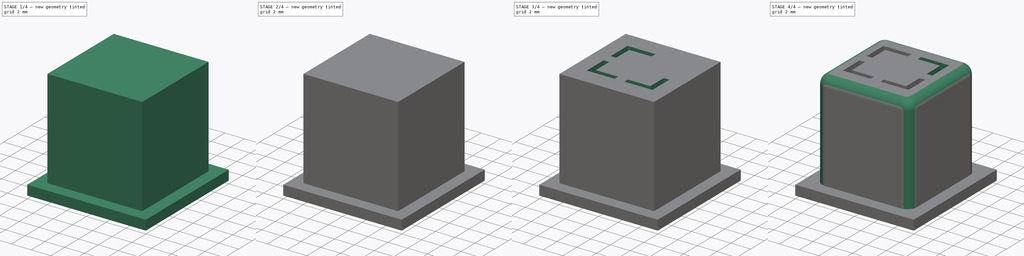
[diagram: build sequence overview — one tinted view per stage of 4, left to right]
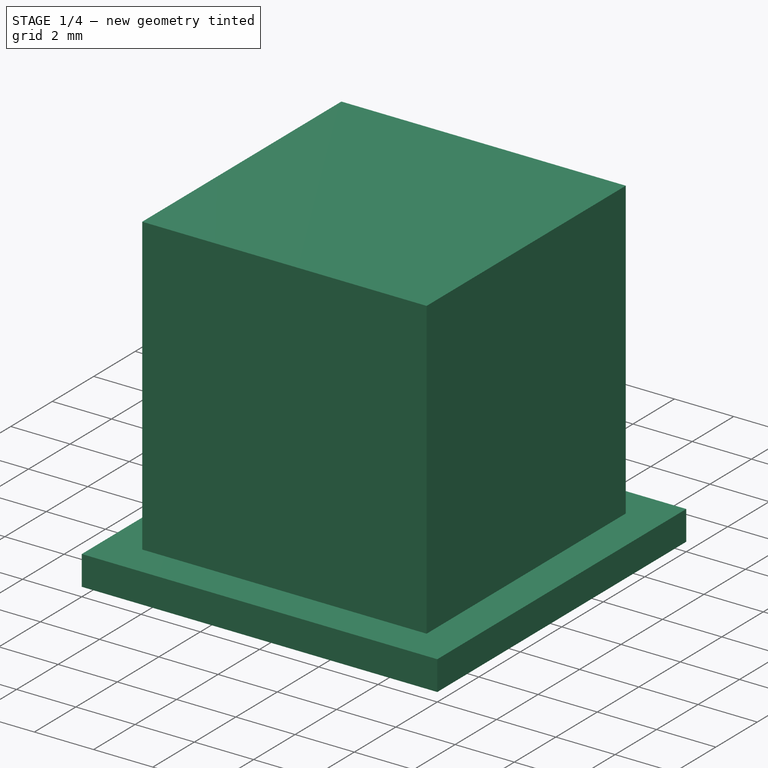
[diagram: stage 1 of 4 — iso view after this stage's code; geometry added in this stage tinted green]
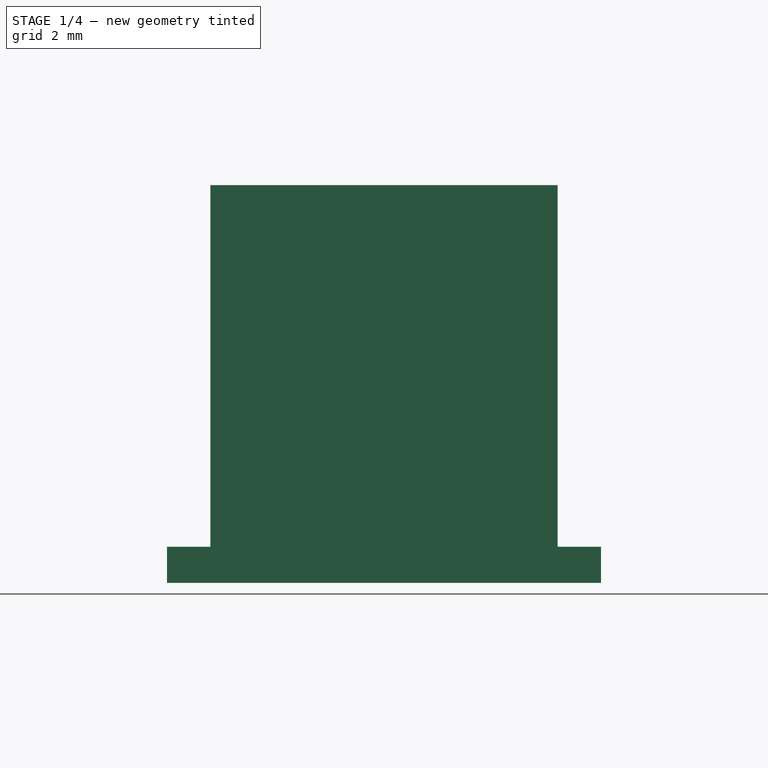
[diagram: stage 1 of 4 — front view after this stage's code; geometry added in this stage tinted green]
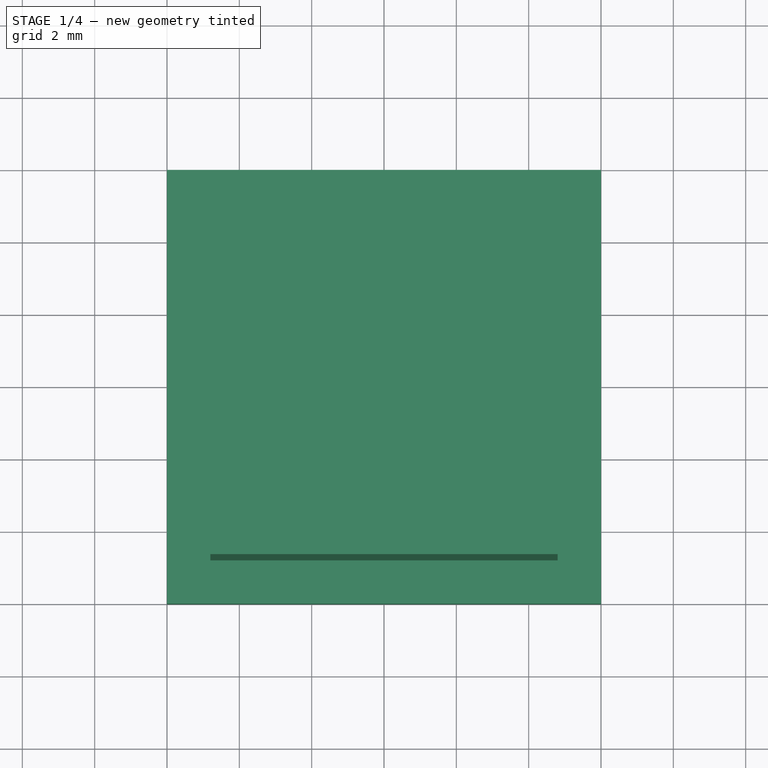
[diagram: stage 1 of 4 — top view after this stage's code; geometry added in this stage tinted green]
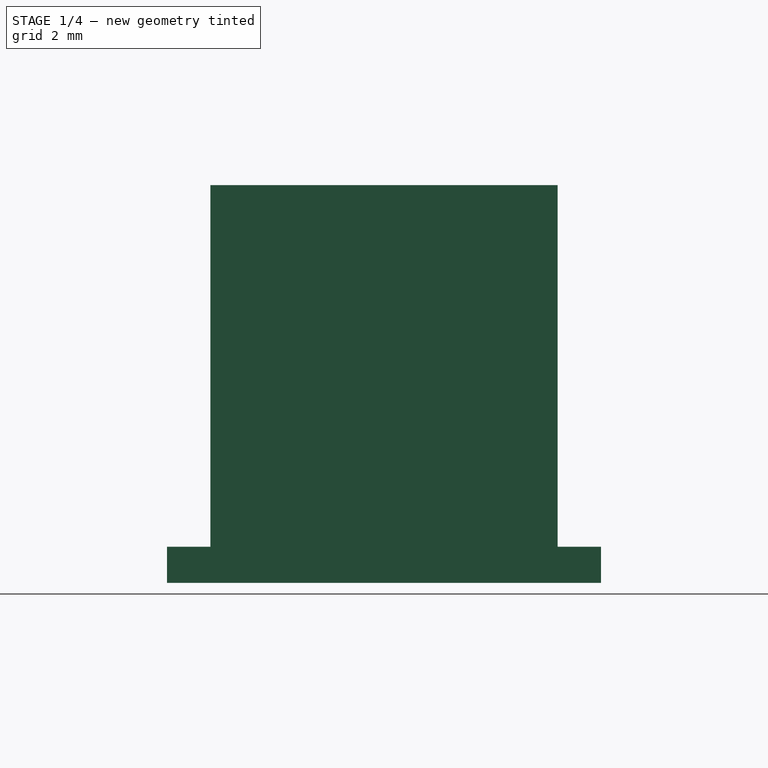
[diagram: stage 1 of 4 — right view after this stage's code; geometry added in this stage tinted green]
FCSTD DOCUMENT  (FreeCAD 0.21R33771 (Git))
Label: bezel-3-button-iteration-1
License: All rights reserved
LicenseURL: http://en.wikipedia.org/wiki/All_rights_reserved
objects: Sketcher::SketchObject×9, PartDesign::Pocket×6, PartDesign::Pad×2, PartDesign::Fillet×1, PartDesign::Body×1
note: 28 computed .brp shape members not serialized (recipe doc carries the construction recipe); baked Part::Feature solids carry a one-line shape summary decoded from their .brp

FEATURE [Sketcher::SketchObject] Sketch
  FullyConstrained = true
  MapMode = 5
  Support = -> [XY_Plane]
  sketch-geometry (4):
    g0: LineSegment StartX=-4.8 StartY=4.8 StartZ=0 EndX=4.8 EndY=4.8 EndZ=0
    g1: LineSegment StartX=4.8 StartY=4.8 StartZ=0 EndX=4.8 EndY=-4.8 EndZ=0
    g2: LineSegment StartX=4.8 StartY=-4.8 StartZ=0 EndX=-4.8 EndY=-4.8 EndZ=0
    g3: LineSegment StartX=-4.8 StartY=-4.8 StartZ=0 EndX=-4.8 EndY=4.8 EndZ=0
  constraints (11):
    c: Coincident(g0,g1)
    c: Coincident(g1,g2)
    c: Coincident(g2,g3)
    c: Coincident(g3,g0)
    c: Horizontal(g0)
    c: Horizontal(g2)
    c: Vertical(g1)
    c: Vertical(g3)
    c: Symmetric(g1,g0,g-1)
    c: Distance(g-1,g1) = 4.8
    c: Distance(g-1,g2) = 4.8
FEATURE [Sketcher::SketchObject] Sketch001
  FullyConstrained = true
  MapMode = 5
  Placement = pos=(0,0,10) rot=(0,0,1;0rad)
  sketch-geometry (30):
    g0: LineSegment StartX=-3.32 StartY=0.5 StartZ=0 EndX=-2.76 EndY=0.5 EndZ=0
    g1: LineSegment StartX=-2.76 StartY=0.5 StartZ=0 EndX=-2.76 EndY=2.45 EndZ=0
    g2: LineSegment StartX=-0.5 StartY=2.95 StartZ=0 EndX=-3.32 EndY=2.95 EndZ=0
    g3: LineSegment StartX=-0.5 StartY=2.45 StartZ=0 EndX=-2.76 EndY=2.45 EndZ=0
    g4: LineSegment StartX=-0.5 StartY=2.95 StartZ=0 EndX=-0.5 EndY=2.45 EndZ=0
    g5: LineSegment StartX=-3.32 StartY=2.95 StartZ=0 EndX=-3.32 EndY=0.5 EndZ=0
    g6: LineSegment StartX=-0.5 StartY=2.95 StartZ=0 EndX=0.5 EndY=2.95 EndZ=0
    g7: LineSegment StartX=0.5 StartY=2.95 StartZ=0 EndX=3.32 EndY=2.95 EndZ=0
    g8: LineSegment StartX=3.32 StartY=2.95 StartZ=0 EndX=3.32 EndY=0.5 EndZ=0
    g9: LineSegment StartX=3.32 StartY=0.5 StartZ=0 EndX=3.32 EndY=-0.5 EndZ=0
    g10: LineSegment StartX=3.32 StartY=-0.5 StartZ=0 EndX=3.32 EndY=-2.95 EndZ=0
    g11: LineSegment StartX=3.32 StartY=-2.95 StartZ=0 EndX=0.5 EndY=-2.95 EndZ=0
    g12: LineSegment StartX=0.5 StartY=-2.95 StartZ=0 EndX=-0.5 EndY=-2.95 EndZ=0
    g13: LineSegment StartX=-0.5 StartY=-2.95 StartZ=0 EndX=-3.32 EndY=-2.95 EndZ=0
    g14: LineSegment StartX=-3.32 StartY=-2.95 StartZ=0 EndX=-3.32 EndY=-0.5 EndZ=0
    g15: LineSegment StartX=-0.5 StartY=2.45 StartZ=0 EndX=0.5 EndY=2.45 EndZ=0
    g16: LineSegment StartX=0.5 StartY=2.45 StartZ=0 EndX=2.76 EndY=2.45 EndZ=0
    g17: LineSegment StartX=2.76 StartY=2.45 StartZ=0 EndX=2.76 EndY=0.5 EndZ=0
    g18: LineSegment StartX=2.76 StartY=0.5 StartZ=0 EndX=3.32 EndY=0.5 EndZ=0
    g19: LineSegment StartX=0.5 StartY=2.45 StartZ=0 EndX=0.5 EndY=2.95 EndZ=0
    g20: LineSegment StartX=2.76 StartY=0.5 StartZ=0 EndX=2.76 EndY=-0.5 EndZ=0
    g21: LineSegment StartX=2.76 StartY=-0.5 StartZ=0 EndX=2.76 EndY=-2.45 EndZ=0
    g22: LineSegment StartX=2.76 StartY=-2.45 StartZ=0 EndX=0.5 EndY=-2.45 EndZ=0
    g23: LineSegment StartX=0.5 StartY=-2.45 StartZ=0 EndX=0.5 EndY=-2.95 EndZ=0
    g24: LineSegment StartX=0.5 StartY=-2.45 StartZ=0 EndX=-0.5 EndY=-2.45 EndZ=0
    g25: LineSegment StartX=-0.5 StartY=-2.45 StartZ=0 EndX=-2.76 EndY=-2.45 EndZ=0
    g26: LineSegment StartX=-2.76 StartY=-2.45 StartZ=0 EndX=-2.76 EndY=-0.5 EndZ=0
    g27: LineSegment StartX=-2.74 StartY=-0.5 StartZ=0 EndX=-3.32 EndY=-0.5 EndZ=0
    g28: LineSegment StartX=-0.5 StartY=-2.45 StartZ=0 EndX=-0.5 EndY=-2.95 EndZ=0
    g29: LineSegment StartX=2.76 StartY=-0.5 StartZ=0 EndX=3.32 EndY=-0.5 EndZ=0
  constraints (85):
    c: DistanceX(g-2,g1) = -2.76
    c: Coincident(g0,g1)
    c: Horizontal(g0)
    c: Vertical(g1)
    c: Horizontal(g2)
    c: DistanceY(g-1,g0) = 0.5
    c: DistanceY(g-1,g1) = 2.45
    c: DistanceX(g2,g2) = 2.82
    c: Coincident(g3,g1)
    c: Horizontal(g3)
    c: Coincident(g2,g4)
    c: Coincident(g4,g3)
    c: Vertical(g4)
    c: Coincident(g2,g5)
    c: Coincident(g5,g0)
    c: Vertical(g5)
    c: DistanceX(g3,g3) = 2.26
    c: DistanceY(g5,g5) = 2.45
    c: Coincident(g6,g2)
    c: Horizontal(g6)
    c: DistanceX(g6,g6) = 1
    c: Coincident(g7,g6)
    c: Horizontal(g7)
    c: DistanceX(g7,g7) = 2.82
    c: Coincident(g8,g7)
    c: Vertical(g8)
    c: DistanceY(g8,g8) = 2.45
    c: DistanceY(g14,g0) = 1
    c: Coincident(g9,g8)
    c: Vertical(g9)
    c: DistanceY(g9,g9) = 1
    c: Coincident(g10,g9)
    c: Vertical(g10)
    c: DistanceY(g10,g10) = 2.45
    c: Coincident(g11,g10)
    c: Horizontal(g11)
    c: DistanceX(g11,g11) = 2.82
    c: Coincident(g12,g11)
    c: Horizontal(g12)
    c: DistanceX(g12,g12) = 1
    c: Coincident(g13,g12)
    c: Horizontal(g13)
    c: DistanceX(g13,g13) = 2.82
    c: Coincident(g14,g13)
    c: Coincident(g15,g3)
    c: Horizontal(g15)
    c: DistanceX(g15,g15) = 1
    c: Coincident(g16,g15)
    c: Horizontal(g16)
    c: DistanceX(g16,g16) = 2.26
    c: Coincident(g17,g16)
    c: Vertical(g17)
    c: DistanceY(g17,g17) = 1.95
    c: Coincident(g18,g17)
    c: Coincident(g18,g8)
    c: Coincident(g19,g16)
    c: Coincident(g19,g7)
    c: Coincident(g20,g17)
    c: Vertical(g20)
    c: DistanceY(g20,g20) = 1
    c: Coincident(g21,g20)
    c: Vertical(g21)
    c: DistanceY(g21,g21) = 1.95
    c: Coincident(g22,g21)
    c: Horizontal(g22)
    c: DistanceX(g22,g22) = 2.26
    c: Coincident(g23,g22)
    c: Coincident(g23,g11)
    c: Coincident(g24,g22)
    c: Horizontal(g24)
    c: DistanceX(g24,g24) = 1
    c: Coincident(g25,g24)
    c: Horizontal(g25)
    c: DistanceX(g25,g25) = 2.26
    c: Coincident(g26,g25)
    c: Vertical(g26)
    c: DistanceY(g26,g26) = 1.95
    c: Coincident(g27,g14)
    c: Horizontal(g27)
    c: DistanceX(g27,g27) = 0.58
    c: Coincident(g28,g25)
    c: Coincident(g28,g13)
    c: Coincident(g29,g21)
    c: Coincident(g29,g10)
    c: DistanceX(g-2,g14) = -3.32
FEATURE [Sketcher::SketchObject] Sketch002
  FullyConstrained = true
  MapMode = 5
  Placement = pos=(0,0,0) rot=(1,0,0;3.14159rad)
  sketch-geometry (4):
    g0: LineSegment StartX=-6 StartY=6 StartZ=0 EndX=6 EndY=6 EndZ=0
    g1: LineSegment StartX=6 StartY=6 StartZ=0 EndX=6 EndY=-6 EndZ=0
    g2: LineSegment StartX=6 StartY=-6 StartZ=0 EndX=-6 EndY=-6 EndZ=0
    g3: LineSegment StartX=-6 StartY=-6 StartZ=0 EndX=-6 EndY=6 EndZ=0
  constraints (11):
    c: Coincident(g0,g1)
    c: Coincident(g1,g2)
    c: Coincident(g2,g3)
    c: Coincident(g3,g0)
    c: Horizontal(g0)
    c: Horizontal(g2)
    c: Vertical(g1)
    c: Vertical(g3)
    c: Symmetric(g1,g0,g-1)
    c: DistanceY(g1,g1) = 12
    c: DistanceX(g2,g2) = 12
FEATURE [Sketcher::SketchObject] Sketch003
  FullyConstrained = true
  MapMode = 5
  Placement = pos=(0,0,-2) rot=(1,0,0;3.14159rad)
  sketch-geometry (4):
    g0: LineSegment StartX=-4 StartY=3 StartZ=0 EndX=-1 EndY=3 EndZ=0
    g1: LineSegment StartX=-1 StartY=3 StartZ=0 EndX=-1 EndY=-3 EndZ=0
    g2: LineSegment StartX=-1 StartY=-3 StartZ=0 EndX=-4 EndY=-3 EndZ=0
    g3: LineSegment StartX=-4 StartY=-3 StartZ=0 EndX=-4 EndY=3 EndZ=0
  constraints (11):
    c: Coincident(g0,g1)
    c: Coincident(g1,g2)
    c: Coincident(g2,g3)
    c: Coincident(g3,g0)
    c: Horizontal(g0)
    c: Horizontal(g2)
    c: Vertical(g3)
    c: Symmetric(g0,g1,g-1)
    c: DistanceY(g1,g1) = 6
    c: DistanceX(g2,g2) = 3
    c: DistanceX(g-2,g1) = -1
FEATURE [Sketcher::SketchObject] Sketch004
  FullyConstrained = true
  MapMode = 5
  Placement = pos=(0,0,-2) rot=(1,0,0;3.14159rad)
  sketch-geometry (4):
    g0: LineSegment StartX=1 StartY=3 StartZ=0 EndX=4 EndY=3 EndZ=0
    g1: LineSegment StartX=4 StartY=3 StartZ=0 EndX=4 EndY=-3 EndZ=0
    g2: LineSegment StartX=4 StartY=-3 StartZ=0 EndX=1 EndY=-3 EndZ=0
    g3: LineSegment StartX=1 StartY=-3 StartZ=0 EndX=1 EndY=3 EndZ=0
  constraints (11):
    c: Coincident(g0,g1)
    c: Coincident(g1,g2)
    c: Coincident(g2,g3)
    c: Coincident(g3,g0)
    c: Horizontal(g0)
    c: Horizontal(g2)
    c: Vertical(g3)
    c: Symmetric(g1,g0,g-1)
    c: DistanceX(g-2,g2) = 1
    c: DistanceX(g2,g2) = 3
    c: DistanceY(g1,g1) = 6
FEATURE [Sketcher::SketchObject] Sketch005
  FullyConstrained = true
  MapMode = 5
  Placement = pos=(0,0,10) rot=(0,0,1;0rad)
  sketch-geometry (8):
    g0: LineSegment StartX=-3.32 StartY=0 StartZ=0 EndX=-3.32 EndY=-0.5 EndZ=0
    g1: LineSegment StartX=0 StartY=-2.95 StartZ=0 EndX=-0.5 EndY=-2.95 EndZ=0
    g2: LineSegment StartX=-3.32 StartY=-0.5 StartZ=0 EndX=-3.32 EndY=-2.95 EndZ=0
    g3: LineSegment StartX=-0.5 StartY=-2.95 StartZ=0 EndX=-3.32 EndY=-2.95 EndZ=0
    g4: LineSegment StartX=-3.32 StartY=-0.5 StartZ=0 EndX=-2.76 EndY=-0.5 EndZ=0
    g5: LineSegment StartX=-2.76 StartY=-0.5 StartZ=0 EndX=-2.76 EndY=-2.45 EndZ=0
    g6: LineSegment StartX=-2.76 StartY=-2.45 StartZ=0 EndX=-0.5 EndY=-2.45 EndZ=0
    g7: LineSegment StartX=-0.5 StartY=-2.45 StartZ=0 EndX=-0.5 EndY=-2.95 EndZ=0
  constraints (24):
    c: PointOnObject(g0,g-1)
    c: Vertical(g0)
    c: PointOnObject(g1,g-2)
    c: Horizontal(g1)
    c: DistanceX(g1,g1) = 0.5
    c: DistanceY(g0,g0) = 0.5
    c: Coincident(g2,g0)
    c: Vertical(g2)
    c: DistanceY(g2,g2) = 2.45
    c: Coincident(g3,g1)
    c: Horizontal(g3)
    c: DistanceX(g3,g3) = 2.82
    c: Coincident(g3,g2)
    c: Coincident(g4,g2)
    c: Horizontal(g4)
    c: DistanceX(g4,g4) = 0.56
    c: Coincident(g5,g4)
    c: Vertical(g5)
    c: DistanceY(g5,g5) = 1.95
    c: Coincident(g6,g5)
    c: Horizontal(g6)
    c: DistanceX(g6,g6) = 2.26
    c: Coincident(g7,g6)
    c: Coincident(g7,g3)
FEATURE [Sketcher::SketchObject] Sketch006
  FullyConstrained = true
  MapMode = 5
  Placement = pos=(0,0,10) rot=(0,0,1;0rad)
  sketch-geometry (8):
    g0: LineSegment StartX=3.32 StartY=0 StartZ=0 EndX=3.32 EndY=0.5 EndZ=0
    g1: LineSegment StartX=0 StartY=2.95 StartZ=0 EndX=0.5 EndY=2.95 EndZ=0
    g2: LineSegment StartX=0.5 StartY=2.95 StartZ=0 EndX=3.32 EndY=2.95 EndZ=0
    g3: LineSegment StartX=3.32 StartY=0.5 StartZ=0 EndX=3.32 EndY=2.95 EndZ=0
    g4: LineSegment StartX=3.32 StartY=0.5 StartZ=0 EndX=2.76 EndY=0.5 EndZ=0
    g5: LineSegment StartX=2.76 StartY=0.5 StartZ=0 EndX=2.76 EndY=2.45 EndZ=0
    g6: LineSegment StartX=2.76 StartY=2.45 StartZ=0 EndX=0.5 EndY=2.45 EndZ=0
    g7: LineSegment StartX=0.5 StartY=2.95 StartZ=0 EndX=0.5 EndY=2.45 EndZ=0
  constraints (24):
    c: PointOnObject(g0,g-1)
    c: Vertical(g0)
    c: PointOnObject(g1,g-2)
    c: Horizontal(g1)
    c: Distance(g1) = 0.5
    c: Distance(g0) = 0.5
    c: Coincident(g2,g1)
    c: Horizontal(g2)
    c: Coincident(g3,g0)
    c: Vertical(g3)
    c: DistanceY(g3,g3) = 2.45
    c: DistanceX(g2,g2) = 2.82
    c: Coincident(g3,g2)
    c: Coincident(g4,g3)
    c: Horizontal(g4)
    c: DistanceX(g4,g4) = 0.56
    c: Coincident(g5,g4)
    c: Vertical(g5)
    c: DistanceY(g5,g5) = 1.95
    c: Coincident(g6,g5)
    c: Horizontal(g6)
    c: DistanceX(g6,g6) = 2.26
    c: Coincident(g7,g2)
    c: Coincident(g7,g6)
FEATURE [Sketcher::SketchObject] Sketch007
  FullyConstrained = true
  MapMode = 5
  Placement = pos=(0,0,10) rot=(0,0,1;0rad)
  sketch-geometry (8):
    g0: LineSegment StartX=0 StartY=2.95 StartZ=0 EndX=-0.5 EndY=2.95 EndZ=0
    g1: LineSegment StartX=-2.76 StartY=0 StartZ=0 EndX=-2.76 EndY=0.5 EndZ=0
    g2: LineSegment StartX=-2.76 StartY=0.5 StartZ=0 EndX=-3.32 EndY=0.5 EndZ=0
    g3: LineSegment StartX=-3.32 StartY=0.5 StartZ=0 EndX=-3.32 EndY=2.95 EndZ=0
    g4: LineSegment StartX=-3.32 StartY=2.95 StartZ=0 EndX=-0.5 EndY=2.95 EndZ=0
    g5: LineSegment StartX=-0.5 StartY=2.95 StartZ=0 EndX=-0.5 EndY=2.39 EndZ=0
    g6: LineSegment StartX=-2.76 StartY=0.5 StartZ=0 EndX=-2.76 EndY=2.39 EndZ=0
    g7: LineSegment StartX=-2.76 StartY=2.39 StartZ=0 EndX=-0.5 EndY=2.39 EndZ=0
  constraints (24):
    c: PointOnObject(g0,g-2)
    c: Horizontal(g0)
    c: PointOnObject(g1,g-1)
    c: Vertical(g1)
    c: DistanceY(g1,g1) = 0.5
    c: DistanceX(g0,g0) = 0.5
    c: Horizontal(g2)
    c: DistanceX(g2,g2) = 0.56
    c: Coincident(g3,g2)
    c: Vertical(g3)
    c: Coincident(g4,g3)
    c: Horizontal(g4)
    c: DistanceY(g3,g3) = 2.45
    c: Coincident(g2,g1)
    c: Coincident(g4,g0)
    c: Coincident(g5,g4)
    c: Vertical(g5)
    c: DistanceY(g5,g5) = 0.56
    c: Coincident(g6,g2)
    c: Vertical(g6)
    c: DistanceY(g6,g6) = 1.89
    c: DistanceX(g4,g4) = 2.82
    c: Coincident(g7,g6)
    c: Coincident(g7,g5)
FEATURE [PartDesign::Pad] Pad
  Direction = (0,0,1)
  Length = 10
  Length2 = 10
  Profile = -> Sketch
  ReferenceAxis = -> Sketch [N_Axis]
  Type = 0
FEATURE [PartDesign::Pad] Pad001
  BaseFeature = -> Pad
  Direction = (0,0,-1)
  Length = 1
  Length2 = 10
  Profile = -> Sketch002
  ReferenceAxis = -> Sketch002 [N_Axis]
  Type = 0
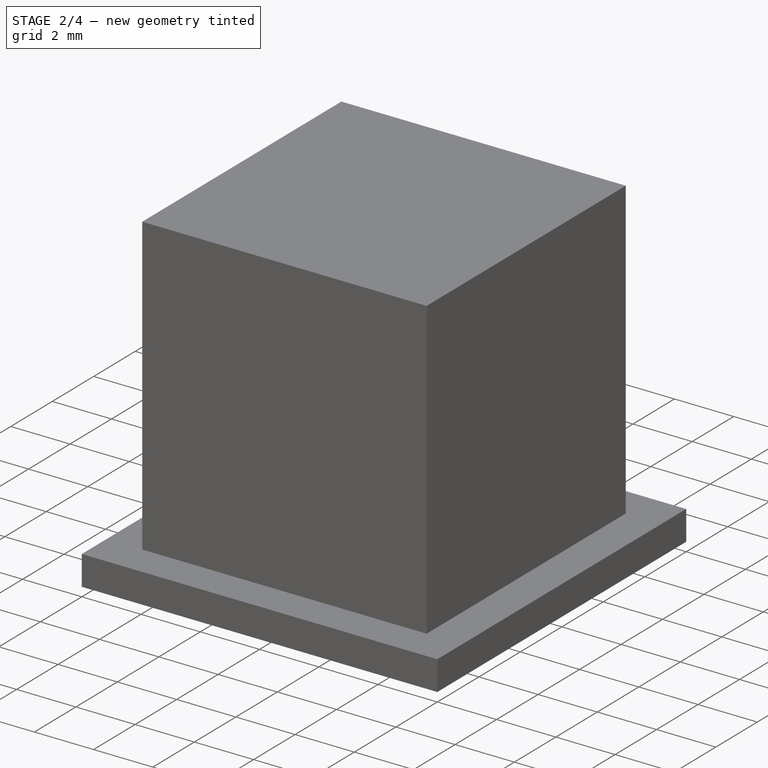
[diagram: stage 2 of 4 — iso view after this stage's code; geometry added in this stage tinted green]
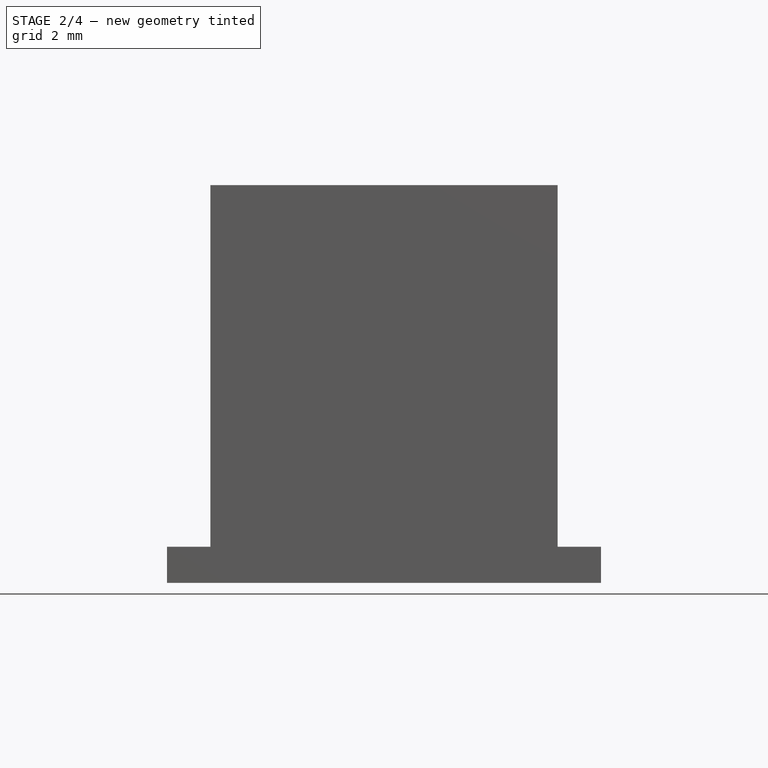
[diagram: stage 2 of 4 — front view after this stage's code; geometry added in this stage tinted green]
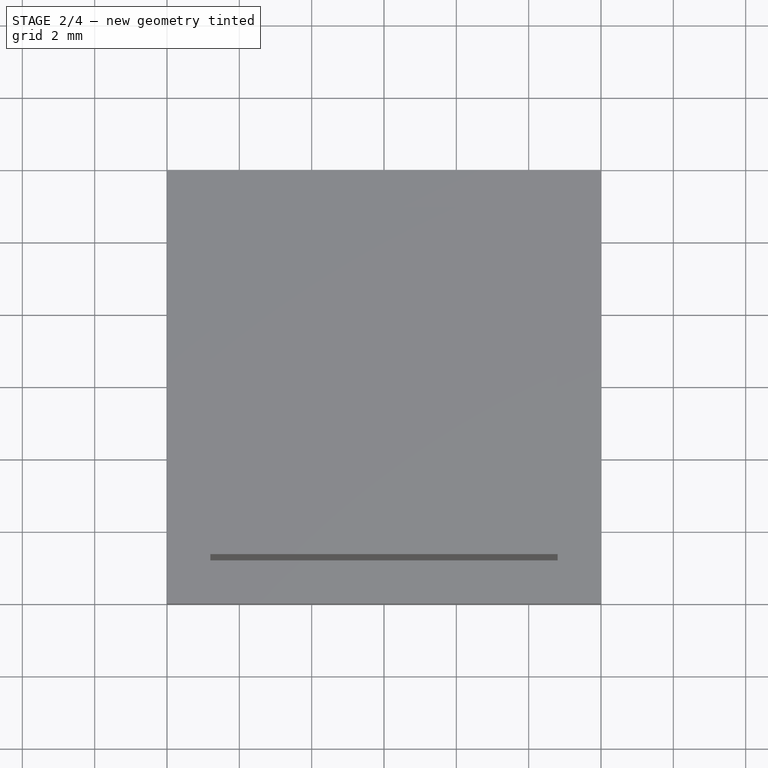
[diagram: stage 2 of 4 — top view after this stage's code; geometry added in this stage tinted green]
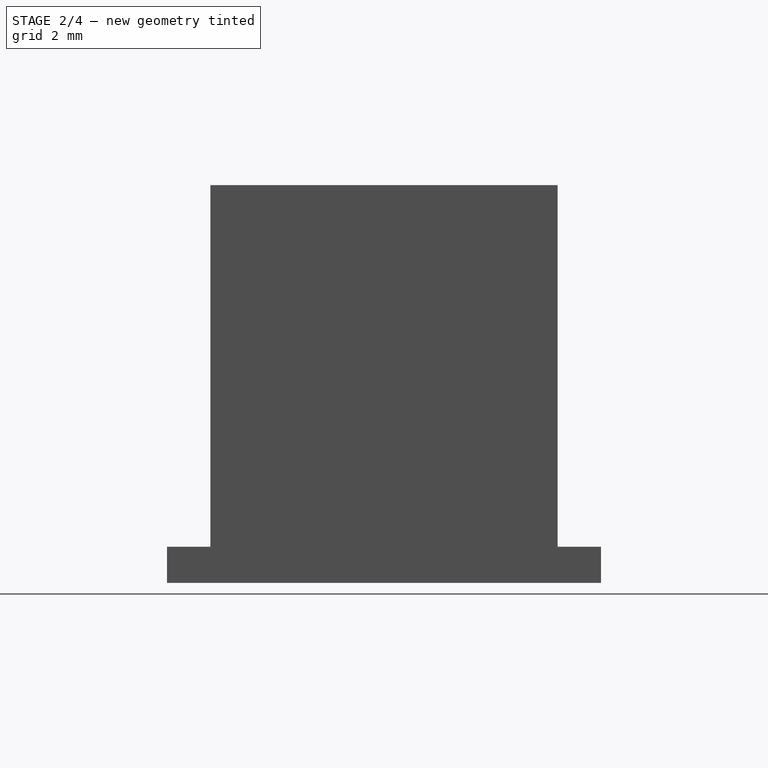
[diagram: stage 2 of 4 — right view after this stage's code; geometry added in this stage tinted green]
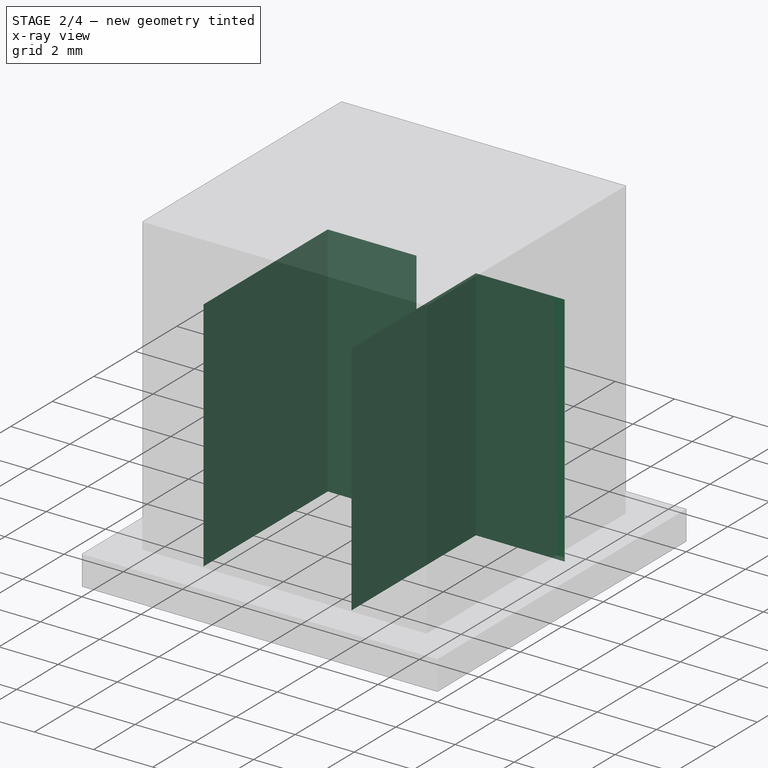
[diagram: stage 2 of 4 — x-ray composite at the iso view; earlier geometry ghosted, this stage's added geometry solid]
FEATURE [PartDesign::Pocket] Pocket
  BaseFeature = -> Pad001
  Direction = (0,0,1)
  Length = 9
  Length2 = 5
  Profile = -> Sketch003
  ReferenceAxis = -> Sketch003 [N_Axis]
  Type = 0
FEATURE [PartDesign::Pocket] Pocket001
  BaseFeature = -> Pocket
  Direction = (0,0,1)
  Length = 9
  Length2 = 5
  Profile = -> Sketch004
  ReferenceAxis = -> Sketch004 [N_Axis]
  Type = 0
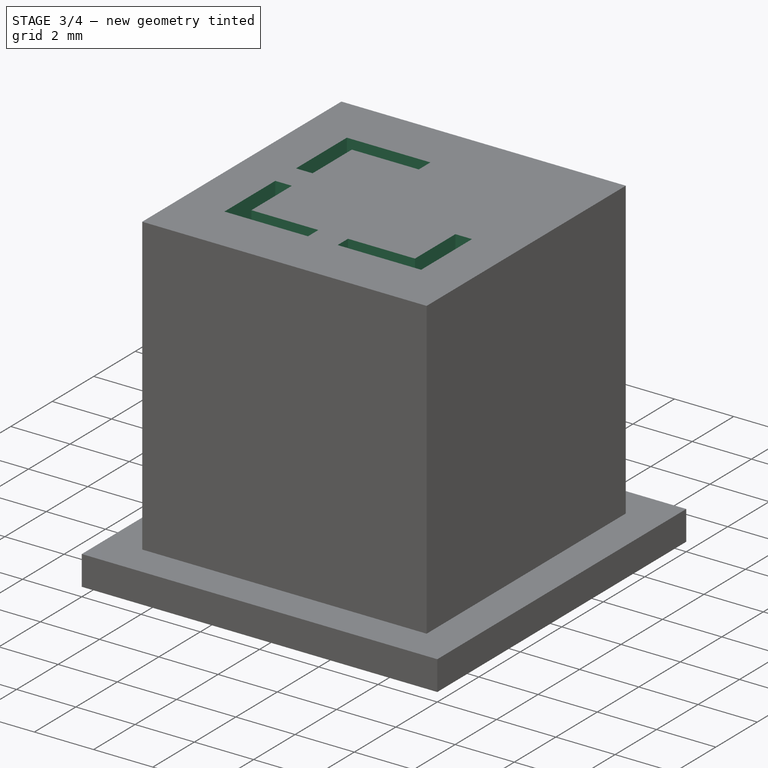
[diagram: stage 3 of 4 — iso view after this stage's code; geometry added in this stage tinted green]
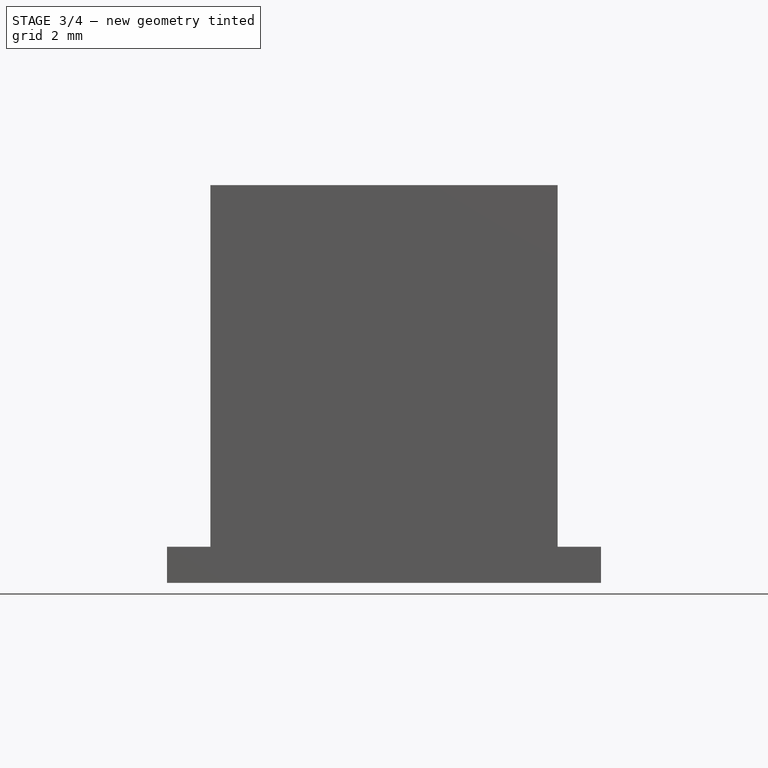
[diagram: stage 3 of 4 — front view after this stage's code; geometry added in this stage tinted green]
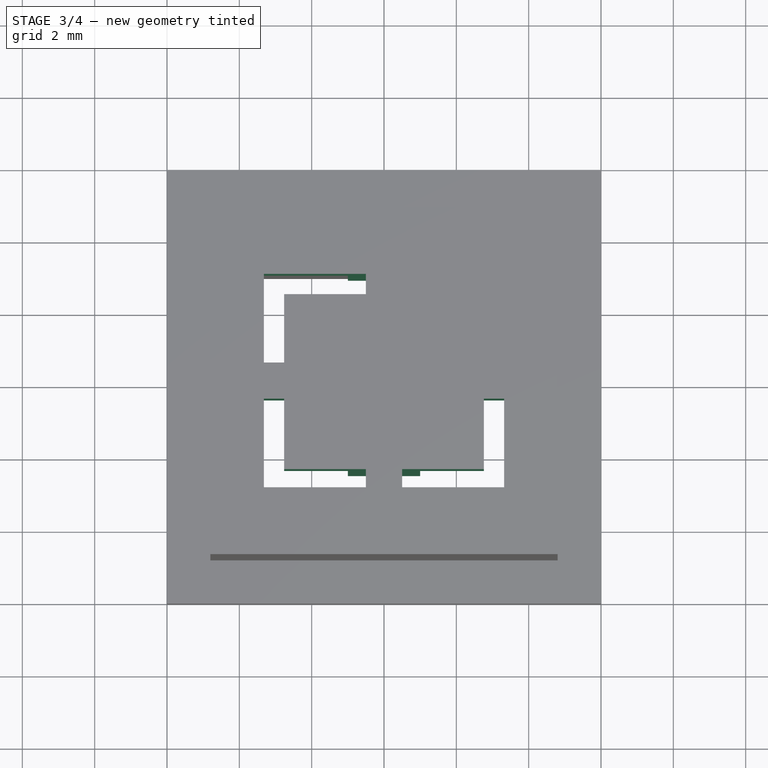
[diagram: stage 3 of 4 — top view after this stage's code; geometry added in this stage tinted green]
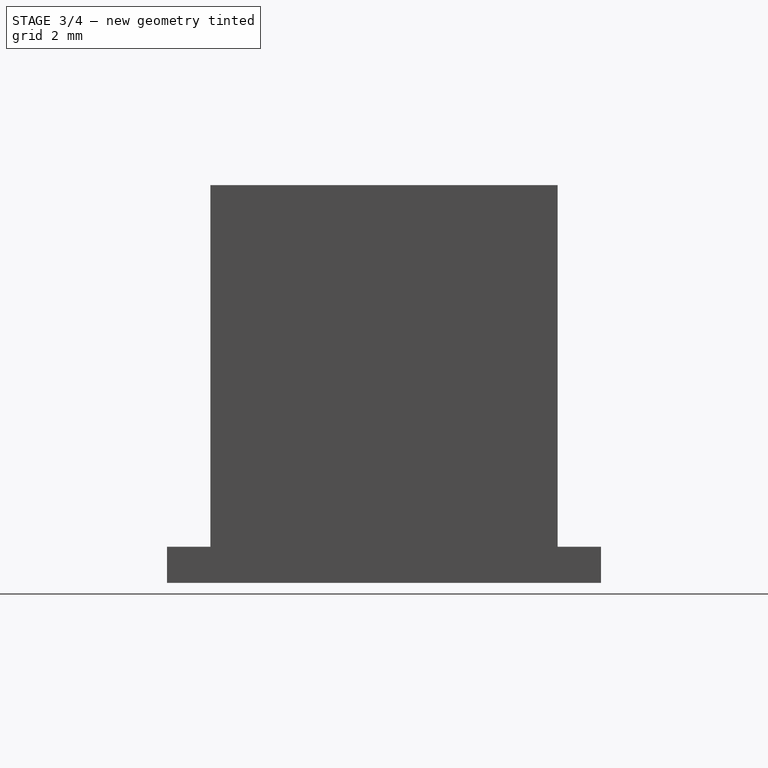
[diagram: stage 3 of 4 — right view after this stage's code; geometry added in this stage tinted green]
FEATURE [PartDesign::Pocket] Pocket002
  BaseFeature = -> Pocket001
  Direction = (0,0,-1)
  Length = 5
  Length2 = 5
  Profile = -> Sketch001
  ReferenceAxis = -> Sketch001 [N_Axis]
  Type = 1
FEATURE [PartDesign::Pocket] Pocket003
  BaseFeature = -> Pocket002
  Direction = (0,0,-1)
  Length = 5
  Length2 = 5
  Profile = -> Sketch005
  ReferenceAxis = -> Sketch005 [N_Axis]
  Type = 1
FEATURE [PartDesign::Pocket] Pocket004
  BaseFeature = -> Pocket003
  Direction = (0,0,-1)
  Length = 5
  Length2 = 5
  Profile = -> Sketch007
  ReferenceAxis = -> Sketch007 [N_Axis]
  Type = 1
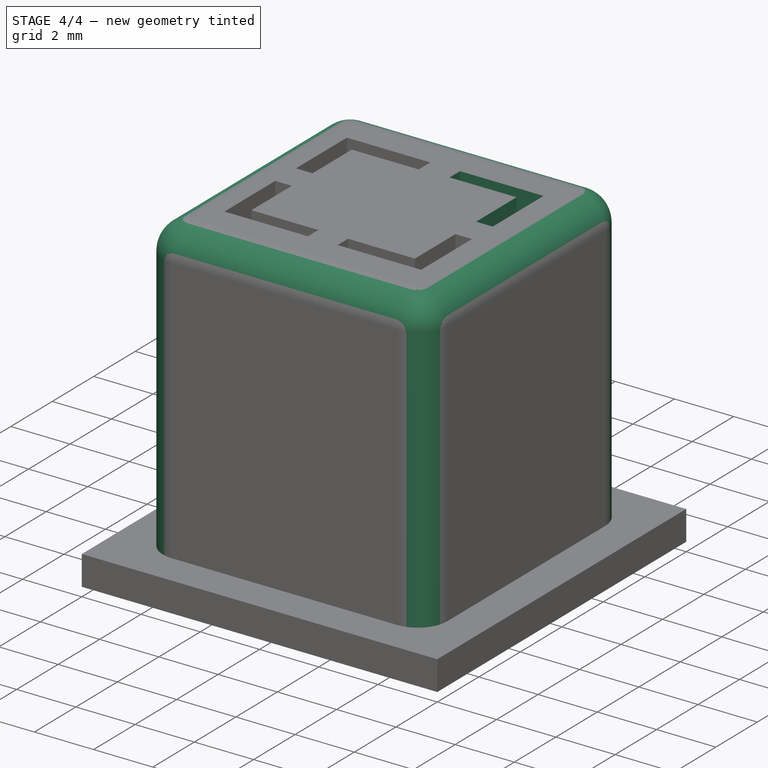
[diagram: stage 4 of 4 — iso view after this stage's code; geometry added in this stage tinted green]
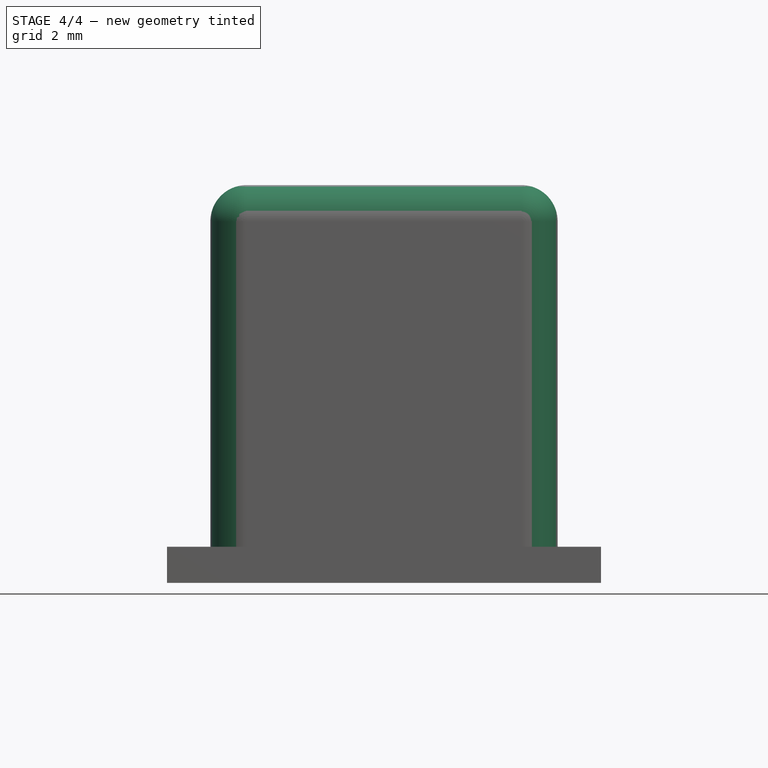
[diagram: stage 4 of 4 — front view after this stage's code; geometry added in this stage tinted green]
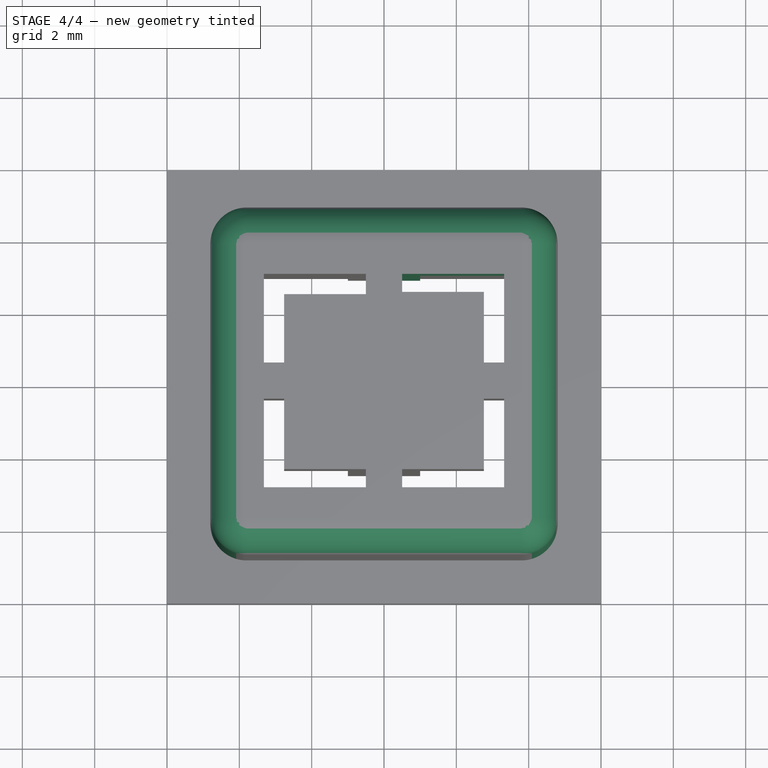
[diagram: stage 4 of 4 — top view after this stage's code; geometry added in this stage tinted green]
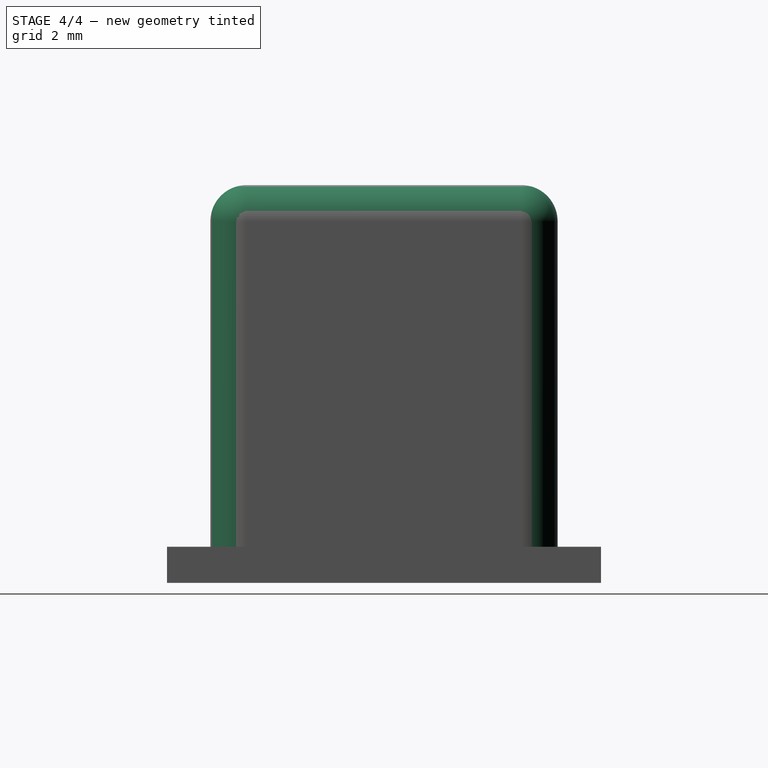
[diagram: stage 4 of 4 — right view after this stage's code; geometry added in this stage tinted green]
FEATURE [PartDesign::Pocket] Pocket005
  BaseFeature = -> Pocket004
  Direction = (0,0,-1)
  Length = 5
  Length2 = 5
  Profile = -> Sketch006
  ReferenceAxis = -> Sketch006 [N_Axis]
  Type = 1
FEATURE [PartDesign::Fillet] Fillet
  Base = -> Pocket005 [Edge48,Edge47,Edge45,Edge44,Edge46,Edge43,Edge41,Edge42]
  BaseFeature = -> Pocket005
  Radius = 1
  SupportTransform = false
  UseAllEdges = false
FEATURE [Sketcher::SketchObject] Sketch008
  FullyConstrained = true
  MapMode = 5
  Placement = pos=(0,0,10) rot=(0,0,1;0rad)
  Support = -> [Fillet]
  sketch-geometry (4):
    g0: LineSegment StartX=0 StartY=2 StartZ=0 EndX=0 EndY=-2 EndZ=0
    g1: LineSegment StartX=0 StartY=2 StartZ=0 EndX=0.4 EndY=2 EndZ=0
    g2: LineSegment StartX=0 StartY=-2 StartZ=0 EndX=0.4 EndY=-2 EndZ=0
    g3: LineSegment StartX=0.4 StartY=-2 StartZ=0 EndX=0.4 EndY=2 EndZ=0
  constraints (11):
    c: DistanceY(g0,g0) = 4
    c: Symmetric(g0,g0,g-1)
    c: Coincident(g1,g0)
    c: Horizontal(g1)
    c: Coincident(g2,g0)
    c: Horizontal(g2)
    c: Coincident(g3,g2)
    c: Coincident(g3,g1)
    c: Vertical(g3)
    c: Parallel(g3,g0)
    c: DistanceX(g2,g2) = 0.4
FEATURE [PartDesign::Body] Body  label="standard gray button"
  Group = -> [Sketch,Sketch001,Sketch002,Sketch003,Sketch004,Sketch005,Sketch006,Sketch007,Pad,Pad001,Pocket,Pocket001,Pocket002,Pocket003,Pocket004,Pocket005,Fillet,Sketch008]
  Origin = -> Origin
  Tip = -> Fillet
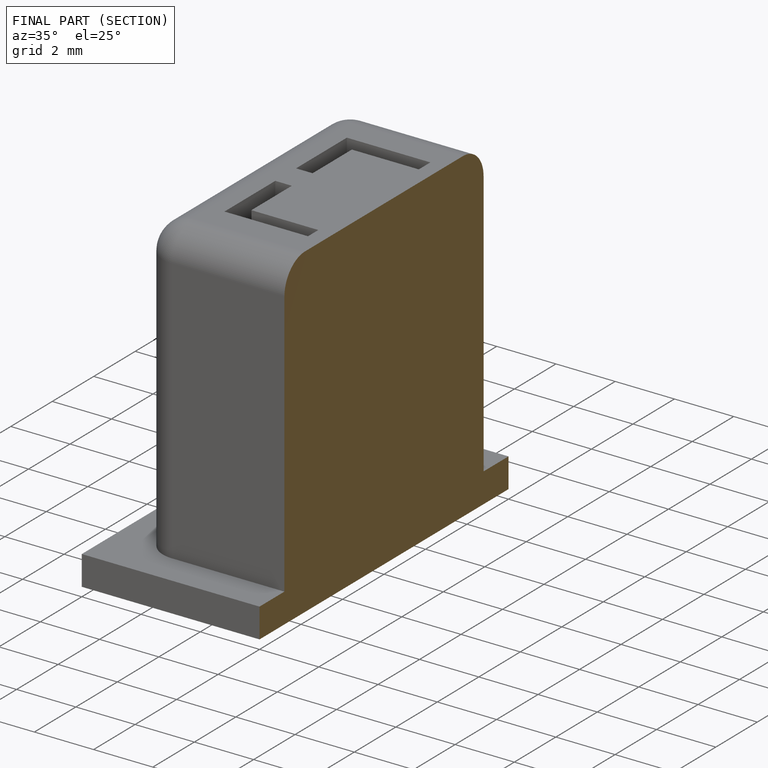
[diagram: finished part — half-section view (interior)]
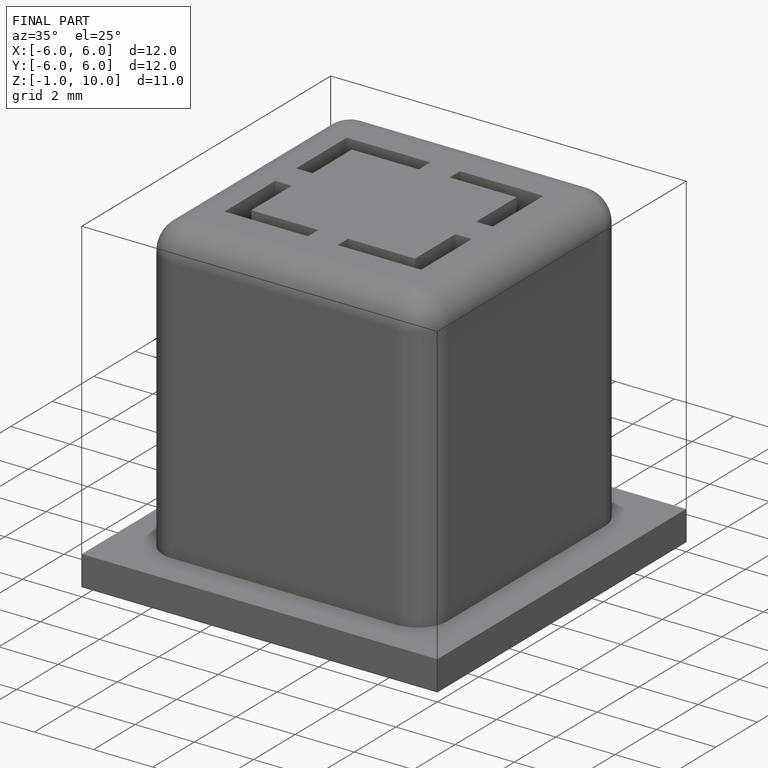
[diagram: finished part — iso view with bounding-box wireframe]
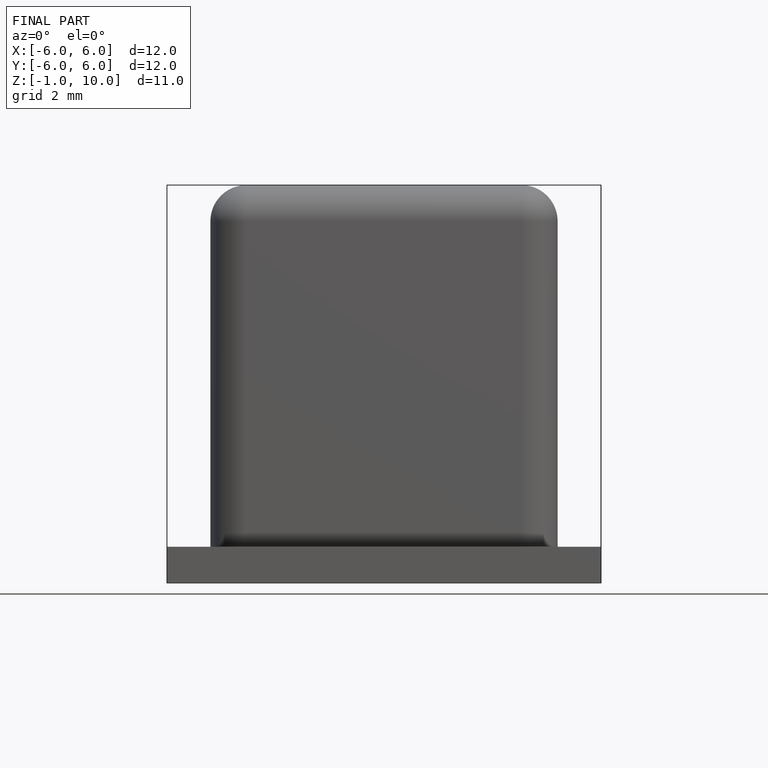
[diagram: finished part — front view with bounding-box wireframe]
